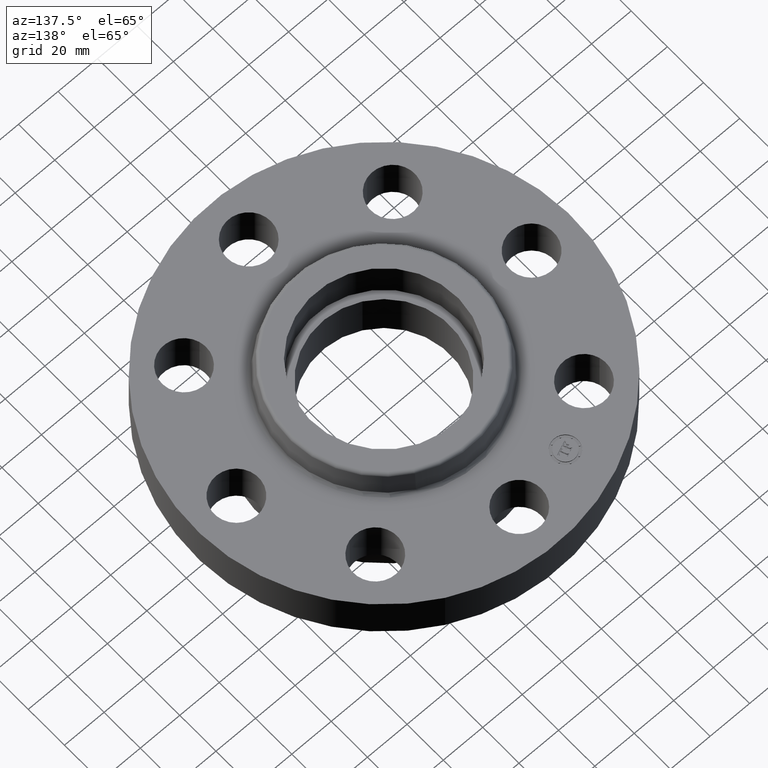
[diagram: clean part render]
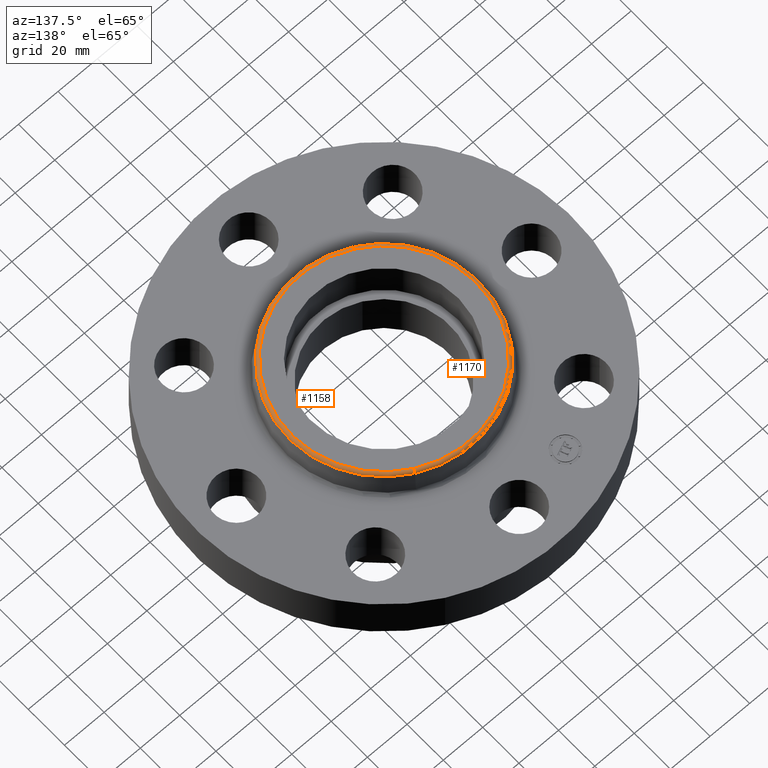
[diagram: same view with one multi-face feature highlighted, each face labeled with its STEP entity id]
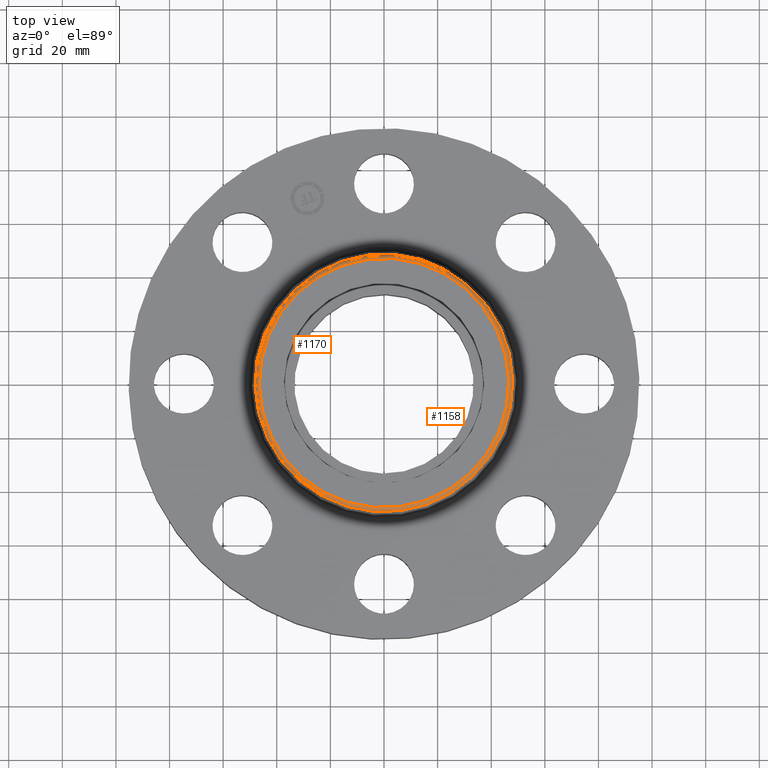
[diagram: same view with one multi-face feature highlighted, each face labeled with its STEP entity id]
A machine part, auxiliary view. The highlighted faces form ONE feature: a constant-radius fillet chain: 2 tangent blend faces with common blend radius 1.524 mm. The faces share edges in the B-rep.
A second angle (top view) of the same feature is appended — it is thin or edge-on in the first view.
Their STEP definitions:
[1] entity #1158 (Torus):
#1056=AXIS2_PLACEMENT_3D('Circle Axis2P3D',#1054,#1055,$) ;
#1131=AXIS2_PLACEMENT_3D('Torus Axis2P3D',#1128,#1129,#1130) ;
#1135=AXIS2_PLACEMENT_3D('Circle Axis2P3D',#1133,#1134,$) ;
#1142=AXIS2_PLACEMENT_3D('Circle Axis2P3D',#1140,#1141,$) ;
#1149=AXIS2_PLACEMENT_3D('Circle Axis2P3D',#1147,#1148,$) ;
#1051=CARTESIAN_POINT('Vertex',(0.906391853893,1.65913915961,1.39041889067)) ;
#1054=CARTESIAN_POINT('Axis2P3D Location',(0.,0.,1.39041889067)) ;
#1058=CARTESIAN_POINT('Vertex',(-0.906391853893,-1.65913915961,1.39041889067)) ;
#1128=CARTESIAN_POINT('Axis2P3D Location',(0.,0.,1.38000000001)) ;
#1133=CARTESIAN_POINT('Axis2P3D Location',(0.878063334648,1.60728415296,1.38000000001)) ;
#1137=CARTESIAN_POINT('Vertex',(0.878063334648,1.60728415296,1.44000000001)) ;
#1140=CARTESIAN_POINT('Axis2P3D Location',(0.,0.,1.44000000001)) ;
#1144=CARTESIAN_POINT('Vertex',(-0.878063334648,-1.60728415296,1.44000000001)) ;
#1147=CARTESIAN_POINT('Axis2P3D Location',(-0.878063334648,-1.60728415296,1.38000000001)) ;
#1055=DIRECTION('Axis2P3D Direction',(0.,0.,-0.0393700787402)) ;
#1129=DIRECTION('Axis2P3D Direction',(0.,0.,-0.0393700787402)) ;
#1130=DIRECTION('Axis2P3D XDirection',(-0.0188750212049,-0.0345504945626,0.)) ;
#1134=DIRECTION('Axis2P3D Direction',(-0.0345504945626,0.0188750212049,0.)) ;
#1141=DIRECTION('Axis2P3D Direction',(0.,0.,-0.0393700787402)) ;
#1148=DIRECTION('Axis2P3D Direction',(0.0345504945626,-0.0188750212049,0.)) ;
#1153=ORIENTED_EDGE('',*,*,#1060,.F.) ;
#1154=ORIENTED_EDGE('',*,*,#1139,.T.) ;
#1155=ORIENTED_EDGE('',*,*,#1146,.T.) ;
#1156=ORIENTED_EDGE('',*,*,#1151,.F.) ;
#1158=ADVANCED_FACE('PartBody',(#1157),#1132,.T.) ;
#1057=CIRCLE('generated circle',#1056,1.89057899696) ;
#1136=CIRCLE('generated circle',#1135,0.0600000000002) ;
#1143=CIRCLE('generated circle',#1142,1.83149053178) ;
#1150=CIRCLE('generated circle',#1149,0.0600000000002) ;
#1132=TOROIDAL_SURFACE('homeo Torus',#1131,1.83149053178,0.0600000000002) ;
#1060=EDGE_CURVE('',#1052,#1059,#1057,.T.) ;
#1139=EDGE_CURVE('',#1052,#1138,#1136,.F.) ;
#1146=EDGE_CURVE('',#1138,#1145,#1143,.T.) ;
#1151=EDGE_CURVE('',#1059,#1145,#1150,.F.) ;
#1152=EDGE_LOOP('',(#1153,#1154,#1155,#1156)) ;
#1157=FACE_OUTER_BOUND('',#1152,.T.) ;
#1052=VERTEX_POINT('',#1051) ;
#1059=VERTEX_POINT('',#1058) ;
#1138=VERTEX_POINT('',#1137) ;
#1145=VERTEX_POINT('',#1144) ;
[2] entity #1170 (Torus):
#1075=AXIS2_PLACEMENT_3D('Circle Axis2P3D',#1073,#1074,$) ;
#1131=AXIS2_PLACEMENT_3D('Torus Axis2P3D',#1128,#1129,#1130) ;
#1135=AXIS2_PLACEMENT_3D('Circle Axis2P3D',#1133,#1134,$) ;
#1149=AXIS2_PLACEMENT_3D('Circle Axis2P3D',#1147,#1148,$) ;
#1161=AXIS2_PLACEMENT_3D('Circle Axis2P3D',#1159,#1160,$) ;
#1051=CARTESIAN_POINT('Vertex',(0.906391853893,1.65913915961,1.39041889067)) ;
#1058=CARTESIAN_POINT('Vertex',(-0.906391853893,-1.65913915961,1.39041889067)) ;
#1073=CARTESIAN_POINT('Axis2P3D Location',(0.,0.,1.39041889067)) ;
#1128=CARTESIAN_POINT('Axis2P3D Location',(0.,0.,1.38000000001)) ;
#1133=CARTESIAN_POINT('Axis2P3D Location',(0.878063334648,1.60728415296,1.38000000001)) ;
#1137=CARTESIAN_POINT('Vertex',(0.878063334648,1.60728415296,1.44000000001)) ;
#1144=CARTESIAN_POINT('Vertex',(-0.878063334648,-1.60728415296,1.44000000001)) ;
#1147=CARTESIAN_POINT('Axis2P3D Location',(-0.878063334648,-1.60728415296,1.38000000001)) ;
#1159=CARTESIAN_POINT('Axis2P3D Location',(0.,0.,1.44000000001)) ;
#1074=DIRECTION('Axis2P3D Direction',(0.,0.,-0.0393700787402)) ;
#1129=DIRECTION('Axis2P3D Direction',(0.,0.,-0.0393700787402)) ;
#1130=DIRECTION('Axis2P3D XDirection',(-0.0188750212049,-0.0345504945626,0.)) ;
#1134=DIRECTION('Axis2P3D Direction',(-0.0345504945626,0.0188750212049,0.)) ;
#1148=DIRECTION('Axis2P3D Direction',(0.0345504945626,-0.0188750212049,0.)) ;
#1160=DIRECTION('Axis2P3D Direction',(0.,0.,-0.0393700787402)) ;
#1165=ORIENTED_EDGE('',*,*,#1077,.F.) ;
#1166=ORIENTED_EDGE('',*,*,#1151,.T.) ;
#1167=ORIENTED_EDGE('',*,*,#1163,.T.) ;
#1168=ORIENTED_EDGE('',*,*,#1139,.F.) ;
#1170=ADVANCED_FACE('PartBody',(#1169),#1132,.T.) ;
#1076=CIRCLE('generated circle',#1075,1.89057899696) ;
#1136=CIRCLE('generated circle',#1135,0.0600000000002) ;
#1150=CIRCLE('generated circle',#1149,0.0600000000002) ;
#1162=CIRCLE('generated circle',#1161,1.83149053178) ;
#1132=TOROIDAL_SURFACE('homeo Torus',#1131,1.83149053178,0.0600000000002) ;
#1077=EDGE_CURVE('',#1059,#1052,#1076,.T.) ;
#1139=EDGE_CURVE('',#1052,#1138,#1136,.F.) ;
#1151=EDGE_CURVE('',#1059,#1145,#1150,.F.) ;
#1163=EDGE_CURVE('',#1145,#1138,#1162,.T.) ;
#1164=EDGE_LOOP('',(#1165,#1166,#1167,#1168)) ;
#1169=FACE_OUTER_BOUND('',#1164,.T.) ;
#1052=VERTEX_POINT('',#1051) ;
#1059=VERTEX_POINT('',#1058) ;
#1138=VERTEX_POINT('',#1137) ;
#1145=VERTEX_POINT('',#1144) ;